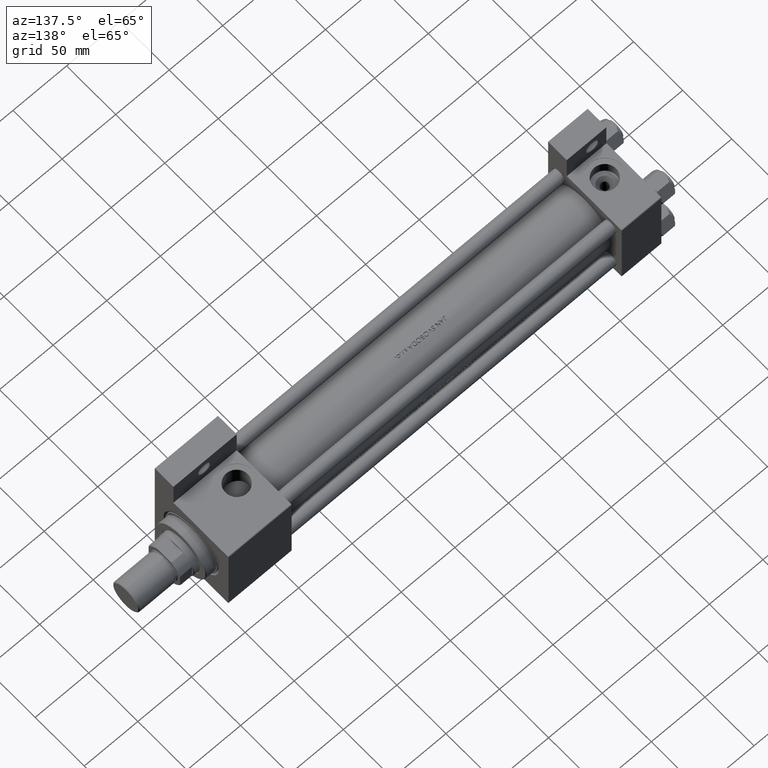
[diagram: clean part render]
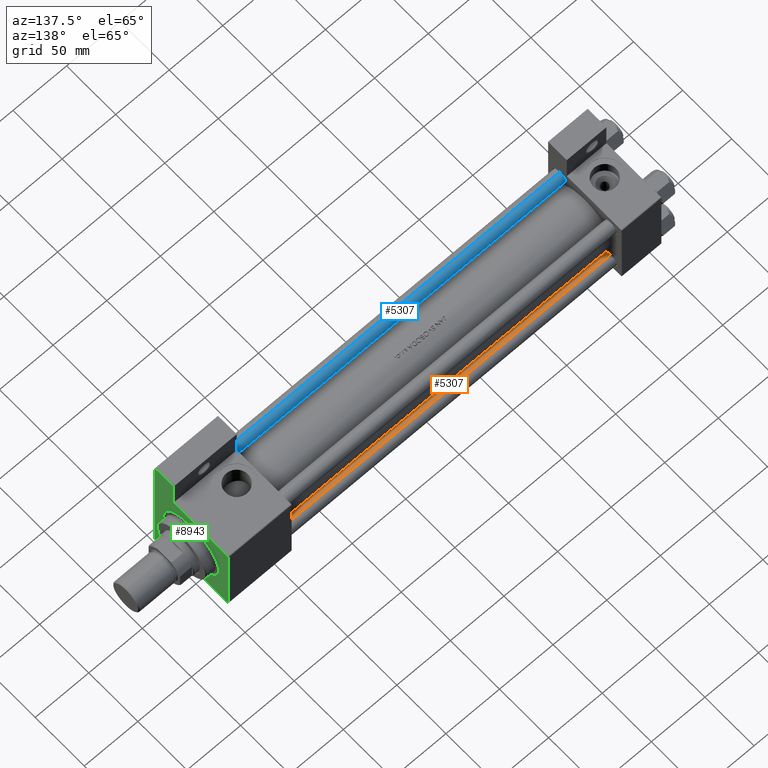
[diagram: same view with three faces highlighted in distinct colors, each labeled with its STEP entity id]
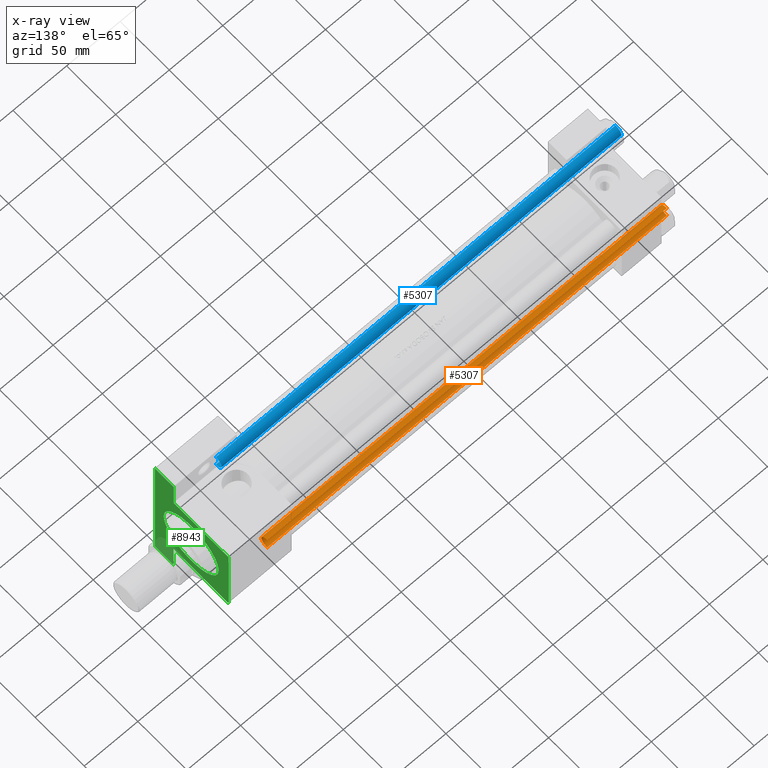
[diagram: x-ray of the same camera — body ghosted, the three highlighted faces saturated]
A machine part, auxiliary view with three faces highlighted in distinct colors.
The next image is the same camera in x-ray (body ghosted, the three faces saturated) — at least one of them is partly hidden behind the body in this view.
Their STEP definitions:

[orange] entity #5307 — the highlighted cylindrical surface (edge-blend (fillet) strip) has radius 6 mm, axis along (1, -0, -0).
#1134 = CARTESIAN_POINT ( 'NONE',  ( -6.000000000000000888, 0.000000000000000000, 374.0000000000000000 ) ) ;
#2478 = EDGE_CURVE ( 'NONE', #5488, #22041, #15819, .T. ) ;
#5307 = ADVANCED_FACE ( 'NONE', ( #42114 ), #33538, .T. ) ;
#5325 = ORIENTED_EDGE ( 'NONE', *, *, #7232, .T. ) ;
#5488 = VERTEX_POINT ( 'NONE', #42486 ) ;
#6687 = DIRECTION ( 'NONE',  ( 1.000000000000000000, 0.000000000000000000, 0.000000000000000000 ) ) ;
#7232 = EDGE_CURVE ( 'NONE', #22041, #22906, #12162, .T. ) ;
#7985 = VECTOR ( 'NONE', #39346, 1000.000000000000000 ) ;
#8664 = ORIENTED_EDGE ( 'NONE', *, *, #2478, .T. ) ;
#9299 = CARTESIAN_POINT ( 'NONE',  ( 6.000000000000000888, 7.347880794884120722E-16, 373.5000000000001137 ) ) ;
#12162 = CIRCLE ( 'NONE', #22698, 6.000000000000000888 ) ;
#12322 = CARTESIAN_POINT ( 'NONE',  ( -6.000000000000000888, 0.000000000000000000, 0.5000000000000559552 ) ) ;
#13260 = DIRECTION ( 'NONE',  ( -0.000000000000000000, -0.000000000000000000, 1.000000000000000000 ) ) ;
#13763 = DIRECTION ( 'NONE',  ( 1.000000000000000000, 0.000000000000000000, 0.000000000000000000 ) ) ;
#14213 = LINE ( 'NONE', #45844, #41567 ) ;
#15819 = LINE ( 'NONE', #1134, #7985 ) ;
#18436 = EDGE_CURVE ( 'NONE', #47989, #5488, #34775, .T. ) ;
#19089 = CARTESIAN_POINT ( 'NONE',  ( 0.000000000000000000, 0.000000000000000000, 373.5000000000001137 ) ) ;
#21649 = DIRECTION ( 'NONE',  ( -1.000000000000000000, 0.000000000000000000, 0.000000000000000000 ) ) ;
#22041 = VERTEX_POINT ( 'NONE', #12322 ) ;
#22698 = AXIS2_PLACEMENT_3D ( 'NONE', #43894, #13260, #13763 ) ;
#22906 = VERTEX_POINT ( 'NONE', #47260 ) ;
#25711 = EDGE_CURVE ( 'NONE', #47989, #22906, #14213, .T. ) ;
#25878 = DIRECTION ( 'NONE',  ( -0.000000000000000000, -0.000000000000000000, -1.000000000000000000 ) ) ;
#27208 = ORIENTED_EDGE ( 'NONE', *, *, #18436, .T. ) ;
#29133 = AXIS2_PLACEMENT_3D ( 'NONE', #19089, #30493, #6687 ) ;
#29624 = EDGE_LOOP ( 'NONE', ( #38648, #27208, #8664, #5325 ) ) ;
#30493 = DIRECTION ( 'NONE',  ( 0.000000000000000000, 0.000000000000000000, -1.000000000000000000 ) ) ;
#33538 = CYLINDRICAL_SURFACE ( 'NONE', #44447, 6.000000000000000888 ) ;
#34775 = CIRCLE ( 'NONE', #29133, 6.000000000000000888 ) ;
#38648 = ORIENTED_EDGE ( 'NONE', *, *, #25711, .F. ) ;
#39346 = DIRECTION ( 'NONE',  ( -0.000000000000000000, -0.000000000000000000, -1.000000000000000000 ) ) ;
#41103 = CARTESIAN_POINT ( 'NONE',  ( 0.000000000000000000, 0.000000000000000000, 374.0000000000000000 ) ) ;
#41567 = VECTOR ( 'NONE', #25878, 1000.000000000000000 ) ;
#42114 = FACE_OUTER_BOUND ( 'NONE', #29624, .T. ) ;
#42486 = CARTESIAN_POINT ( 'NONE',  ( -6.000000000000000888, 0.000000000000000000, 373.5000000000001137 ) ) ;
#43894 = CARTESIAN_POINT ( 'NONE',  ( 0.000000000000000000, 0.000000000000000000, 0.5000000000000559552 ) ) ;
#44447 = AXIS2_PLACEMENT_3D ( 'NONE', #41103, #48710, #21649 ) ;
#45844 = CARTESIAN_POINT ( 'NONE',  ( 6.000000000000000888, 7.347880794884120722E-16, 374.0000000000000000 ) ) ;
#47260 = CARTESIAN_POINT ( 'NONE',  ( 6.000000000000000888, 7.347880794884120722E-16, 0.5000000000000559552 ) ) ;
#47989 = VERTEX_POINT ( 'NONE', #9299 ) ;
#48710 = DIRECTION ( 'NONE',  ( -0.000000000000000000, -0.000000000000000000, -1.000000000000000000 ) ) ;

[blue] entity #5307 — the highlighted cylindrical surface (edge-blend (fillet) strip) has radius 6 mm, axis along (1, 0, 0).
#1134 = CARTESIAN_POINT ( 'NONE',  ( -6.000000000000000888, 0.000000000000000000, 374.0000000000000000 ) ) ;
#2478 = EDGE_CURVE ( 'NONE', #5488, #22041, #15819, .T. ) ;
#5307 = ADVANCED_FACE ( 'NONE', ( #42114 ), #33538, .T. ) ;
#5325 = ORIENTED_EDGE ( 'NONE', *, *, #7232, .T. ) ;
#5488 = VERTEX_POINT ( 'NONE', #42486 ) ;
#6687 = DIRECTION ( 'NONE',  ( 1.000000000000000000, 0.000000000000000000, 0.000000000000000000 ) ) ;
#7232 = EDGE_CURVE ( 'NONE', #22041, #22906, #12162, .T. ) ;
#7985 = VECTOR ( 'NONE', #39346, 1000.000000000000000 ) ;
#8664 = ORIENTED_EDGE ( 'NONE', *, *, #2478, .T. ) ;
#9299 = CARTESIAN_POINT ( 'NONE',  ( 6.000000000000000888, 7.347880794884120722E-16, 373.5000000000001137 ) ) ;
#12162 = CIRCLE ( 'NONE', #22698, 6.000000000000000888 ) ;
#12322 = CARTESIAN_POINT ( 'NONE',  ( -6.000000000000000888, 0.000000000000000000, 0.5000000000000559552 ) ) ;
#13260 = DIRECTION ( 'NONE',  ( -0.000000000000000000, -0.000000000000000000, 1.000000000000000000 ) ) ;
#13763 = DIRECTION ( 'NONE',  ( 1.000000000000000000, 0.000000000000000000, 0.000000000000000000 ) ) ;
#14213 = LINE ( 'NONE', #45844, #41567 ) ;
#15819 = LINE ( 'NONE', #1134, #7985 ) ;
#18436 = EDGE_CURVE ( 'NONE', #47989, #5488, #34775, .T. ) ;
#19089 = CARTESIAN_POINT ( 'NONE',  ( 0.000000000000000000, 0.000000000000000000, 373.5000000000001137 ) ) ;
#21649 = DIRECTION ( 'NONE',  ( -1.000000000000000000, 0.000000000000000000, 0.000000000000000000 ) ) ;
#22041 = VERTEX_POINT ( 'NONE', #12322 ) ;
#22698 = AXIS2_PLACEMENT_3D ( 'NONE', #43894, #13260, #13763 ) ;
#22906 = VERTEX_POINT ( 'NONE', #47260 ) ;
#25711 = EDGE_CURVE ( 'NONE', #47989, #22906, #14213, .T. ) ;
#25878 = DIRECTION ( 'NONE',  ( -0.000000000000000000, -0.000000000000000000, -1.000000000000000000 ) ) ;
#27208 = ORIENTED_EDGE ( 'NONE', *, *, #18436, .T. ) ;
#29133 = AXIS2_PLACEMENT_3D ( 'NONE', #19089, #30493, #6687 ) ;
#29624 = EDGE_LOOP ( 'NONE', ( #38648, #27208, #8664, #5325 ) ) ;
#30493 = DIRECTION ( 'NONE',  ( 0.000000000000000000, 0.000000000000000000, -1.000000000000000000 ) ) ;
#33538 = CYLINDRICAL_SURFACE ( 'NONE', #44447, 6.000000000000000888 ) ;
#34775 = CIRCLE ( 'NONE', #29133, 6.000000000000000888 ) ;
#38648 = ORIENTED_EDGE ( 'NONE', *, *, #25711, .F. ) ;
#39346 = DIRECTION ( 'NONE',  ( -0.000000000000000000, -0.000000000000000000, -1.000000000000000000 ) ) ;
#41103 = CARTESIAN_POINT ( 'NONE',  ( 0.000000000000000000, 0.000000000000000000, 374.0000000000000000 ) ) ;
#41567 = VECTOR ( 'NONE', #25878, 1000.000000000000000 ) ;
#42114 = FACE_OUTER_BOUND ( 'NONE', #29624, .T. ) ;
#42486 = CARTESIAN_POINT ( 'NONE',  ( -6.000000000000000888, 0.000000000000000000, 373.5000000000001137 ) ) ;
#43894 = CARTESIAN_POINT ( 'NONE',  ( 0.000000000000000000, 0.000000000000000000, 0.5000000000000559552 ) ) ;
#44447 = AXIS2_PLACEMENT_3D ( 'NONE', #41103, #48710, #21649 ) ;
#45844 = CARTESIAN_POINT ( 'NONE',  ( 6.000000000000000888, 7.347880794884120722E-16, 374.0000000000000000 ) ) ;
#47260 = CARTESIAN_POINT ( 'NONE',  ( 6.000000000000000888, 7.347880794884120722E-16, 0.5000000000000559552 ) ) ;
#47989 = VERTEX_POINT ( 'NONE', #9299 ) ;
#48710 = DIRECTION ( 'NONE',  ( -0.000000000000000000, -0.000000000000000000, -1.000000000000000000 ) ) ;

[green] entity #8943 — the highlighted planar face has unit normal (-1, 0, 0).
#223 = LINE ( 'NONE', #27577, #22125 ) ;
#666 = VECTOR ( 'NONE', #37323, 1000.000000000000000 ) ;
#1215 = LINE ( 'NONE', #43234, #11309 ) ;
#2493 = EDGE_CURVE ( 'NONE', #48830, #29380, #31025, .T. ) ;
#3927 = DIRECTION ( 'NONE',  ( 0.000000000000000000, -1.000000000000000000, 0.000000000000000000 ) ) ;
#4201 = CARTESIAN_POINT ( 'NONE',  ( 403.9999999999998863, 63.49999999999994316, -18.50000000000000000 ) ) ;
#4314 = EDGE_CURVE ( 'NONE', #32682, #48830, #21769, .T. ) ;
#4920 = DIRECTION ( 'NONE',  ( 0.000000000000000000, 0.000000000000000000, 1.000000000000000000 ) ) ;
#5266 = CARTESIAN_POINT ( 'NONE',  ( 403.9999999999999432, 3.429011037612578626E-15, 27.49999999999991473 ) ) ;
#5367 = ORIENTED_EDGE ( 'NONE', *, *, #38184, .T. ) ;
#5564 = DIRECTION ( 'NONE',  ( -0.000000000000000000, -0.7071067811865474617, -0.7071067811865474617 ) ) ;
#5591 = EDGE_CURVE ( 'NONE', #24125, #10828, #1215, .T. ) ;
#6703 = LINE ( 'NONE', #7697, #666 ) ;
#7169 = CIRCLE ( 'NONE', #11207, 27.99999999999991473 ) ;
#7282 = EDGE_LOOP ( 'NONE', ( #45790, #44323, #41163, #33084, #7355, #9904, #40622, #26098, #26508, #5367 ) ) ;
#7355 = ORIENTED_EDGE ( 'NONE', *, *, #5591, .T. ) ;
#7560 = DIRECTION ( 'NONE',  ( -0.000000000000000000, -1.000000000000000000, -0.000000000000000000 ) ) ;
#7697 = CARTESIAN_POINT ( 'NONE',  ( 403.9999999999998863, -63.50000000000002842, -18.50000000000000000 ) ) ;
#7720 = LINE ( 'NONE', #38591, #45466 ) ;
#8418 = CARTESIAN_POINT ( 'NONE',  ( 403.9999999999998863, 37.49999999999993605, -18.50000000000000000 ) ) ;
#8717 = DIRECTION ( 'NONE',  ( -1.000000000000000000, -0.000000000000000000, 0.000000000000000000 ) ) ;
#8757 = AXIS2_PLACEMENT_3D ( 'NONE', #17046, #17545, #9185 ) ;
#8943 = ADVANCED_FACE ( 'NONE', ( #39329, #16323 ), #27979, .F. ) ;
#9015 = VERTEX_POINT ( 'NONE', #25827 ) ;
#9185 = DIRECTION ( 'NONE',  ( 0.000000000000000000, 0.000000000000000000, 1.000000000000000000 ) ) ;
#9619 = CARTESIAN_POINT ( 'NONE',  ( 403.9999999999999432, 37.50000000000000000, 36.99999999999999289 ) ) ;
#9904 = ORIENTED_EDGE ( 'NONE', *, *, #25120, .T. ) ;
#10828 = VERTEX_POINT ( 'NONE', #29972 ) ;
#11096 = LINE ( 'NONE', #42233, #11647 ) ;
#11207 = AXIS2_PLACEMENT_3D ( 'NONE', #28281, #12299, #43682 ) ;
#11309 = VECTOR ( 'NONE', #27572, 1000.000000000000000 ) ;
#11456 = VERTEX_POINT ( 'NONE', #5266 ) ;
#11647 = VECTOR ( 'NONE', #7560, 1000.000000000000000 ) ;
#11913 = CARTESIAN_POINT ( 'NONE',  ( 403.9999999999999432, 37.00000000000000000, 37.49999999999999289 ) ) ;
#11951 = CARTESIAN_POINT ( 'NONE',  ( 403.9999999999999432, -37.50000000000000000, 36.99999999999997868 ) ) ;
#12299 = DIRECTION ( 'NONE',  ( -1.000000000000000000, -0.000000000000000000, 0.000000000000000000 ) ) ;
#12742 = AXIS2_PLACEMENT_3D ( 'NONE', #43381, #8717, #4920 ) ;
#13648 = LINE ( 'NONE', #11951, #41372 ) ;
#14090 = VECTOR ( 'NONE', #42337, 1000.000000000000000 ) ;
#15215 = EDGE_CURVE ( 'NONE', #48682, #29380, #6703, .T. ) ;
#15384 = EDGE_CURVE ( 'NONE', #11456, #9015, #28161, .T. ) ;
#15467 = CARTESIAN_POINT ( 'NONE',  ( 403.9999999999998863, -63.50000000000002842, -18.50000000000000000 ) ) ;
#15856 = ORIENTED_EDGE ( 'NONE', *, *, #15384, .T. ) ;
#16081 = EDGE_CURVE ( 'NONE', #9015, #11456, #7169, .T. ) ;
#16323 = FACE_OUTER_BOUND ( 'NONE', #7282, .T. ) ;
#17046 = CARTESIAN_POINT ( 'NONE',  ( 403.9999999999999432, 0.000000000000000000, -0.5000000000000004441 ) ) ;
#17545 = DIRECTION ( 'NONE',  ( -1.000000000000000000, -0.000000000000000000, 0.000000000000000000 ) ) ;
#17718 = CARTESIAN_POINT ( 'NONE',  ( 403.9999999999999432, -37.00000000000000000, 37.49999999999997868 ) ) ;
#19879 = EDGE_CURVE ( 'NONE', #47664, #30766, #23818, .T. ) ;
#20031 = DIRECTION ( 'NONE',  ( 0.000000000000000000, -0.7071067811865474617, 0.7071067811865474617 ) ) ;
#21769 = LINE ( 'NONE', #28871, #30664 ) ;
#22125 = VECTOR ( 'NONE', #43238, 1000.000000000000000 ) ;
#23542 = VERTEX_POINT ( 'NONE', #17718 ) ;
#23818 = LINE ( 'NONE', #11913, #42062 ) ;
#24125 = VERTEX_POINT ( 'NONE', #49493 ) ;
#24472 = VERTEX_POINT ( 'NONE', #8418 ) ;
#25120 = EDGE_CURVE ( 'NONE', #10828, #48682, #11096, .T. ) ;
#25323 = CARTESIAN_POINT ( 'NONE',  ( 403.9999999999998863, 63.49999999999994316, -37.50000000000000000 ) ) ;
#25827 = CARTESIAN_POINT ( 'NONE',  ( 403.9999999999999432, 0.000000000000000000, -28.49999999999991473 ) ) ;
#26098 = ORIENTED_EDGE ( 'NONE', *, *, #2493, .F. ) ;
#26508 = ORIENTED_EDGE ( 'NONE', *, *, #4314, .F. ) ;
#27572 = DIRECTION ( 'NONE',  ( 0.000000000000000000, -9.251858538542972814E-17, -1.000000000000000000 ) ) ;
#27577 = CARTESIAN_POINT ( 'NONE',  ( 403.9999999999999432, 37.50000000000000000, 37.49999999999999289 ) ) ;
#27979 = PLANE ( 'NONE',  #12742 ) ;
#28161 = CIRCLE ( 'NONE', #8757, 27.99999999999991473 ) ;
#28281 = CARTESIAN_POINT ( 'NONE',  ( 403.9999999999999432, 0.000000000000000000, -0.5000000000000004441 ) ) ;
#28871 = CARTESIAN_POINT ( 'NONE',  ( 403.9999999999998863, 63.49999999999994316, -18.50000000000000000 ) ) ;
#29380 = VERTEX_POINT ( 'NONE', #37544 ) ;
#29972 = CARTESIAN_POINT ( 'NONE',  ( 403.9999999999999432, -37.50000000000000711, -18.50000000000000355 ) ) ;
#30664 = VECTOR ( 'NONE', #40724, 1000.000000000000000 ) ;
#30766 = VERTEX_POINT ( 'NONE', #49206 ) ;
#31025 = LINE ( 'NONE', #47446, #46792 ) ;
#31206 = CARTESIAN_POINT ( 'NONE',  ( 403.9999999999999432, 37.50000000000000000, 37.49999999999999289 ) ) ;
#32682 = VERTEX_POINT ( 'NONE', #4201 ) ;
#33084 = ORIENTED_EDGE ( 'NONE', *, *, #36779, .T. ) ;
#36779 = EDGE_CURVE ( 'NONE', #23542, #24125, #13648, .T. ) ;
#37323 = DIRECTION ( 'NONE',  ( 0.000000000000000000, 0.000000000000000000, -1.000000000000000000 ) ) ;
#37544 = CARTESIAN_POINT ( 'NONE',  ( 403.9999999999998863, -63.50000000000002842, -37.50000000000000000 ) ) ;
#37825 = ORIENTED_EDGE ( 'NONE', *, *, #16081, .T. ) ;
#38184 = EDGE_CURVE ( 'NONE', #32682, #24472, #7720, .T. ) ;
#38591 = CARTESIAN_POINT ( 'NONE',  ( 403.9999999999998863, 63.49999999999994316, -18.50000000000000000 ) ) ;
#39329 = FACE_BOUND ( 'NONE', #40322, .T. ) ;
#40322 = EDGE_LOOP ( 'NONE', ( #37825, #15856 ) ) ;
#40622 = ORIENTED_EDGE ( 'NONE', *, *, #15215, .T. ) ;
#40724 = DIRECTION ( 'NONE',  ( 0.000000000000000000, 0.000000000000000000, -1.000000000000000000 ) ) ;
#41163 = ORIENTED_EDGE ( 'NONE', *, *, #41336, .T. ) ;
#41336 = EDGE_CURVE ( 'NONE', #30766, #23542, #223, .T. ) ;
#41372 = VECTOR ( 'NONE', #5564, 1000.000000000000114 ) ;
#42062 = VECTOR ( 'NONE', #20031, 1000.000000000000114 ) ;
#42233 = CARTESIAN_POINT ( 'NONE',  ( 403.9999999999998863, -63.50000000000002842, -18.50000000000000000 ) ) ;
#42337 = DIRECTION ( 'NONE',  ( 0.000000000000000000, 0.000000000000000000, -1.000000000000000000 ) ) ;
#42401 = DIRECTION ( 'NONE',  ( 0.000000000000000000, -1.000000000000000000, 0.000000000000000000 ) ) ;
#43234 = CARTESIAN_POINT ( 'NONE',  ( 403.9999999999999432, -37.50000000000000000, 37.49999999999997868 ) ) ;
#43238 = DIRECTION ( 'NONE',  ( 0.000000000000000000, -1.000000000000000000, -1.850371707708594316E-16 ) ) ;
#43338 = LINE ( 'NONE', #31206, #14090 ) ;
#43381 = CARTESIAN_POINT ( 'NONE',  ( 403.9999999999999432, 0.000000000000000000, 0.000000000000000000 ) ) ;
#43682 = DIRECTION ( 'NONE',  ( 0.000000000000000000, 0.000000000000000000, 1.000000000000000000 ) ) ;
#44323 = ORIENTED_EDGE ( 'NONE', *, *, #19879, .T. ) ;
#45466 = VECTOR ( 'NONE', #3927, 1000.000000000000000 ) ;
#45790 = ORIENTED_EDGE ( 'NONE', *, *, #46660, .F. ) ;
#46660 = EDGE_CURVE ( 'NONE', #47664, #24472, #43338, .T. ) ;
#46792 = VECTOR ( 'NONE', #42401, 1000.000000000000000 ) ;
#47446 = CARTESIAN_POINT ( 'NONE',  ( 403.9999999999999432, 37.50000000000000000, -37.50000000000000000 ) ) ;
#47664 = VERTEX_POINT ( 'NONE', #9619 ) ;
#48682 = VERTEX_POINT ( 'NONE', #15467 ) ;
#48830 = VERTEX_POINT ( 'NONE', #25323 ) ;
#49206 = CARTESIAN_POINT ( 'NONE',  ( 403.9999999999999432, 37.00000000000000000, 37.49999999999999289 ) ) ;
#49493 = CARTESIAN_POINT ( 'NONE',  ( 403.9999999999999432, -37.50000000000000000, 36.99999999999997868 ) ) ;